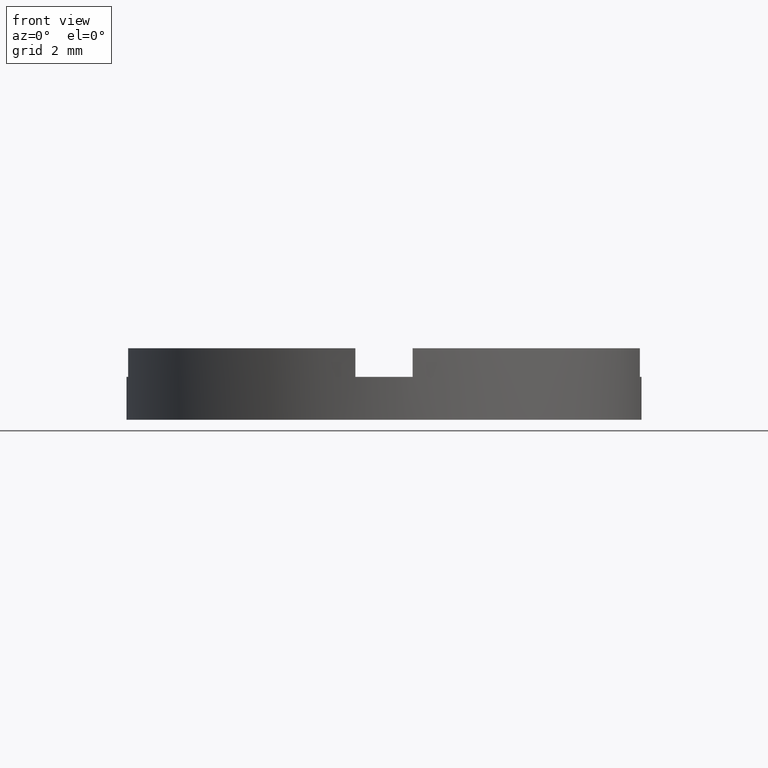
[diagram: clean part render]
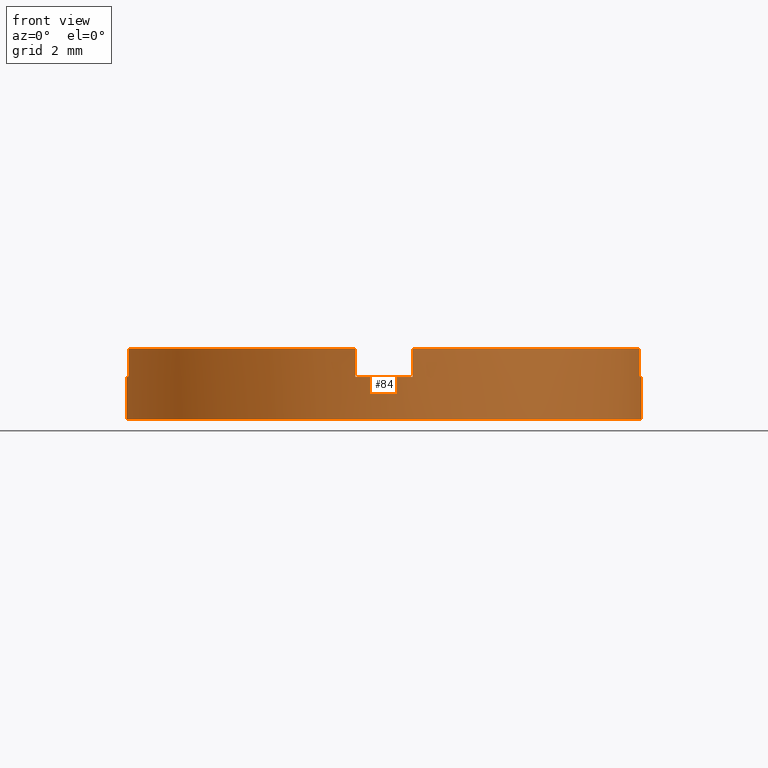
[diagram: same view with one face highlighted and labeled with its STEP entity id]
A machine part, front view. The second image highlights one B-rep face of the part: STEP entity #84.
In plain terms, the highlighted cylindrical surface (partial cylindrical patch) has radius 9 mm, axis along (-0, -0, -1).
Its self-contained STEP definition (entity closure, byte-faithful):
#14 = VERTEX_POINT ( 'NONE', #136 ) ;
#15 = ORIENTED_EDGE ( 'NONE', *, *, #51, .T. ) ;
#16 = ORIENTED_EDGE ( 'NONE', *, *, #37, .T. ) ;
#21 = CARTESIAN_POINT ( 'NONE',  ( 0.000000000000000000, 0.000000000000000000, 1.500000000000000000 ) ) ;
#25 = CARTESIAN_POINT ( 'NONE',  ( -0.9999999999999986677, -8.944271909999157444, 1.500000000000000000 ) ) ;
#37 = EDGE_CURVE ( 'NONE', #374, #261, #640, .T. ) ;
#42 = LINE ( 'NONE', #493, #65 ) ;
#47 = CIRCLE ( 'NONE', #61, 9.000000000000000000 ) ;
#51 = EDGE_CURVE ( 'NONE', #691, #745, #578, .T. ) ;
#54 = CIRCLE ( 'NONE', #502, 9.000000000000000000 ) ;
#60 = CARTESIAN_POINT ( 'NONE',  ( 1.000000000000001332, -8.944271909999157444, 1.500000000000000000 ) ) ;
#61 = AXIS2_PLACEMENT_3D ( 'NONE', #219, #422, #149 ) ;
#64 = LINE ( 'NONE', #60, #299 ) ;
#65 = VECTOR ( 'NONE', #123, 1000.000000000000000 ) ;
#82 = CIRCLE ( 'NONE', #746, 9.000000000000000000 ) ;
#84 = ADVANCED_FACE ( 'NONE', ( #597 ), #594, .T. ) ;
#85 = VECTOR ( 'NONE', #291, 1000.000000000000000 ) ;
#86 = LINE ( 'NONE', #249, #359 ) ;
#88 = EDGE_CURVE ( 'NONE', #14, #97, #54, .T. ) ;
#89 = CIRCLE ( 'NONE', #571, 9.000000000000000000 ) ;
#90 = DIRECTION ( 'NONE',  ( -0.000000000000000000, 0.000000000000000000, 1.000000000000000000 ) ) ;
#97 = VERTEX_POINT ( 'NONE', #499 ) ;
#110 = VERTEX_POINT ( 'NONE', #386 ) ;
#111 = CARTESIAN_POINT ( 'NONE',  ( 0.000000000000000000, 0.000000000000000000, 1.500000000000000000 ) ) ;
#122 = DIRECTION ( 'NONE',  ( -0.000000000000000000, -0.000000000000000000, 1.000000000000000000 ) ) ;
#123 = DIRECTION ( 'NONE',  ( -0.000000000000000000, -0.000000000000000000, -1.000000000000000000 ) ) ;
#133 = DIRECTION ( 'NONE',  ( -0.000000000000000000, -0.000000000000000000, -1.000000000000000000 ) ) ;
#136 = CARTESIAN_POINT ( 'NONE',  ( -8.944271909999160997, -0.9999999999999676925, 2.500000000000000000 ) ) ;
#137 = ORIENTED_EDGE ( 'NONE', *, *, #672, .F. ) ;
#138 = CARTESIAN_POINT ( 'NONE',  ( 0.000000000000000000, 0.000000000000000000, 2.500000000000000000 ) ) ;
#149 = DIRECTION ( 'NONE',  ( 1.000000000000000000, 0.000000000000000000, 0.000000000000000000 ) ) ;
#150 = DIRECTION ( 'NONE',  ( 0.000000000000000000, 0.000000000000000000, 1.000000000000000000 ) ) ;
#151 = VERTEX_POINT ( 'NONE', #388 ) ;
#156 = ORIENTED_EDGE ( 'NONE', *, *, #505, .T. ) ;
#158 = EDGE_CURVE ( 'NONE', #466, #261, #42, .T. ) ;
#159 = CARTESIAN_POINT ( 'NONE',  ( 0.000000000000000000, 0.000000000000000000, 2.500000000000000000 ) ) ;
#163 = DIRECTION ( 'NONE',  ( -0.000000000000000000, 0.000000000000000000, 1.000000000000000000 ) ) ;
#189 = DIRECTION ( 'NONE',  ( 1.000000000000000000, 0.000000000000000000, 0.000000000000000000 ) ) ;
#219 = CARTESIAN_POINT ( 'NONE',  ( 0.000000000000000000, 0.000000000000000000, 1.500000000000000000 ) ) ;
#230 = CARTESIAN_POINT ( 'NONE',  ( 9.000000000000000000, 1.102182119232617714E-15, 0.000000000000000000 ) ) ;
#231 = EDGE_CURVE ( 'NONE', #691, #466, #47, .T. ) ;
#249 = CARTESIAN_POINT ( 'NONE',  ( -9.000000000000000000, 0.000000000000000000, 2.500000000000000000 ) ) ;
#253 = DIRECTION ( 'NONE',  ( -0.000000000000000000, -0.000000000000000000, 1.000000000000000000 ) ) ;
#261 = VERTEX_POINT ( 'NONE', #230 ) ;
#266 = ORIENTED_EDGE ( 'NONE', *, *, #450, .F. ) ;
#267 = DIRECTION ( 'NONE',  ( 1.000000000000000000, 0.000000000000000000, 0.000000000000000000 ) ) ;
#277 = ORIENTED_EDGE ( 'NONE', *, *, #669, .F. ) ;
#291 = DIRECTION ( 'NONE',  ( -0.000000000000000000, -0.000000000000000000, 1.000000000000000000 ) ) ;
#299 = VECTOR ( 'NONE', #122, 1000.000000000000000 ) ;
#309 = ORIENTED_EDGE ( 'NONE', *, *, #88, .F. ) ;
#325 = EDGE_CURVE ( 'NONE', #110, #379, #64, .T. ) ;
#329 = CARTESIAN_POINT ( 'NONE',  ( 9.000000000000000000, 1.102182119232617714E-15, 1.500000000000000000 ) ) ;
#342 = LINE ( 'NONE', #485, #601 ) ;
#359 = VECTOR ( 'NONE', #476, 1000.000000000000000 ) ;
#366 = CIRCLE ( 'NONE', #510, 9.000000000000000000 ) ;
#370 = CARTESIAN_POINT ( 'NONE',  ( 8.944271909999153891, -1.000000000000034417, 2.500000000000000000 ) ) ;
#374 = VERTEX_POINT ( 'NONE', #600 ) ;
#379 = VERTEX_POINT ( 'NONE', #673 ) ;
#386 = CARTESIAN_POINT ( 'NONE',  ( 1.000000000000001332, -8.944271909999157444, 1.500000000000000000 ) ) ;
#388 = CARTESIAN_POINT ( 'NONE',  ( -8.944271909999160997, -0.9999999999999676925, 1.500000000000000000 ) ) ;
#394 = ORIENTED_EDGE ( 'NONE', *, *, #325, .F. ) ;
#408 = DIRECTION ( 'NONE',  ( 1.000000000000000000, 0.000000000000000000, 0.000000000000000000 ) ) ;
#422 = DIRECTION ( 'NONE',  ( -0.000000000000000000, 0.000000000000000000, 1.000000000000000000 ) ) ;
#449 = EDGE_CURVE ( 'NONE', #699, #151, #89, .T. ) ;
#450 = EDGE_CURVE ( 'NONE', #480, #110, #366, .T. ) ;
#455 = DIRECTION ( 'NONE',  ( -1.000000000000000000, 0.000000000000000000, 0.000000000000000000 ) ) ;
#460 = CARTESIAN_POINT ( 'NONE',  ( 0.000000000000000000, 0.000000000000000000, 2.500000000000000000 ) ) ;
#466 = VERTEX_POINT ( 'NONE', #329 ) ;
#470 = CARTESIAN_POINT ( 'NONE',  ( 8.944271909999153891, -1.000000000000034417, 1.500000000000000000 ) ) ;
#474 = CARTESIAN_POINT ( 'NONE',  ( 8.944271909999153891, -1.000000000000034417, 1.500000000000000000 ) ) ;
#476 = DIRECTION ( 'NONE',  ( -0.000000000000000000, -0.000000000000000000, -1.000000000000000000 ) ) ;
#480 = VERTEX_POINT ( 'NONE', #690 ) ;
#485 = CARTESIAN_POINT ( 'NONE',  ( -8.944271909999160997, -0.9999999999999676925, 1.500000000000000000 ) ) ;
#493 = CARTESIAN_POINT ( 'NONE',  ( 9.000000000000000000, 1.102182119232617714E-15, 2.500000000000000000 ) ) ;
#497 = CARTESIAN_POINT ( 'NONE',  ( 0.000000000000000000, 0.000000000000000000, 0.000000000000000000 ) ) ;
#499 = CARTESIAN_POINT ( 'NONE',  ( -0.9999999999999986677, -8.944271909999157444, 2.500000000000000000 ) ) ;
#500 = DIRECTION ( 'NONE',  ( 0.000000000000000000, 0.000000000000000000, 1.000000000000000000 ) ) ;
#502 = AXIS2_PLACEMENT_3D ( 'NONE', #138, #652, #189 ) ;
#505 = EDGE_CURVE ( 'NONE', #699, #374, #86, .T. ) ;
#510 = AXIS2_PLACEMENT_3D ( 'NONE', #111, #90, #653 ) ;
#515 = ORIENTED_EDGE ( 'NONE', *, *, #737, .T. ) ;
#522 = AXIS2_PLACEMENT_3D ( 'NONE', #460, #133, #455 ) ;
#524 = DIRECTION ( 'NONE',  ( -0.000000000000000000, -0.000000000000000000, 1.000000000000000000 ) ) ;
#531 = ORIENTED_EDGE ( 'NONE', *, *, #449, .F. ) ;
#552 = ORIENTED_EDGE ( 'NONE', *, *, #158, .F. ) ;
#569 = VECTOR ( 'NONE', #253, 1000.000000000000000 ) ;
#571 = AXIS2_PLACEMENT_3D ( 'NONE', #21, #163, #762 ) ;
#574 = ORIENTED_EDGE ( 'NONE', *, *, #231, .F. ) ;
#577 = CARTESIAN_POINT ( 'NONE',  ( -9.000000000000000000, 0.000000000000000000, 1.500000000000000000 ) ) ;
#578 = LINE ( 'NONE', #470, #569 ) ;
#594 = CYLINDRICAL_SURFACE ( 'NONE', #522, 9.000000000000000000 ) ;
#597 = FACE_OUTER_BOUND ( 'NONE', #719, .T. ) ;
#600 = CARTESIAN_POINT ( 'NONE',  ( -9.000000000000000000, 0.000000000000000000, 0.000000000000000000 ) ) ;
#601 = VECTOR ( 'NONE', #524, 1000.000000000000000 ) ;
#629 = LINE ( 'NONE', #25, #85 ) ;
#640 = CIRCLE ( 'NONE', #712, 9.000000000000000000 ) ;
#652 = DIRECTION ( 'NONE',  ( 0.000000000000000000, 0.000000000000000000, 1.000000000000000000 ) ) ;
#653 = DIRECTION ( 'NONE',  ( 1.000000000000000000, 0.000000000000000000, 0.000000000000000000 ) ) ;
#669 = EDGE_CURVE ( 'NONE', #379, #745, #82, .T. ) ;
#672 = EDGE_CURVE ( 'NONE', #151, #14, #342, .T. ) ;
#673 = CARTESIAN_POINT ( 'NONE',  ( 1.000000000000001332, -8.944271909999157444, 2.500000000000000000 ) ) ;
#690 = CARTESIAN_POINT ( 'NONE',  ( -0.9999999999999986677, -8.944271909999157444, 1.500000000000000000 ) ) ;
#691 = VERTEX_POINT ( 'NONE', #474 ) ;
#699 = VERTEX_POINT ( 'NONE', #577 ) ;
#712 = AXIS2_PLACEMENT_3D ( 'NONE', #497, #500, #408 ) ;
#719 = EDGE_LOOP ( 'NONE', ( #552, #574, #15, #277, #394, #266, #515, #309, #137, #531, #156, #16 ) ) ;
#737 = EDGE_CURVE ( 'NONE', #480, #97, #629, .T. ) ;
#745 = VERTEX_POINT ( 'NONE', #370 ) ;
#746 = AXIS2_PLACEMENT_3D ( 'NONE', #159, #150, #267 ) ;
#762 = DIRECTION ( 'NONE',  ( 1.000000000000000000, 0.000000000000000000, 0.000000000000000000 ) ) ;